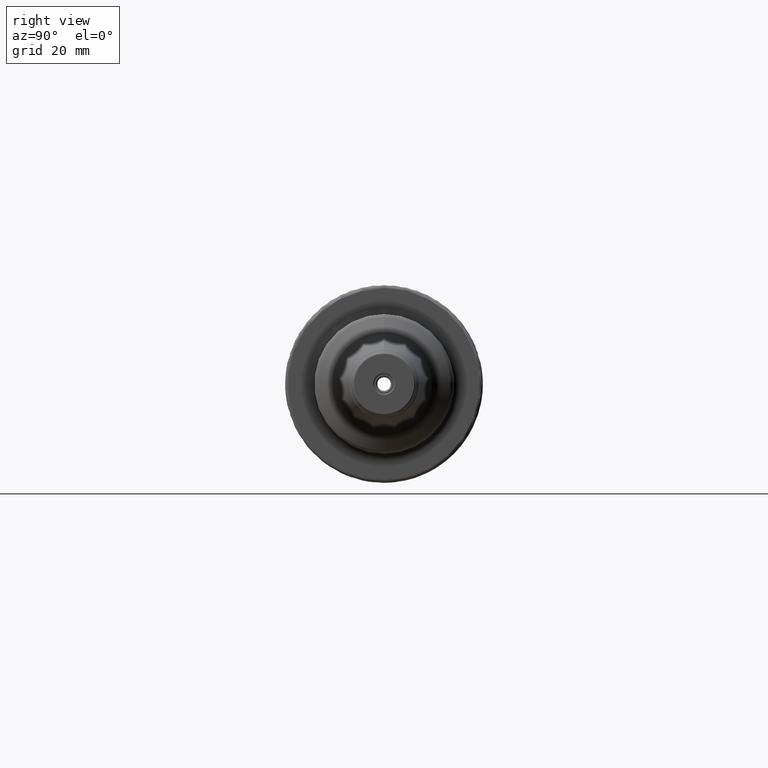
[diagram: clean part render]
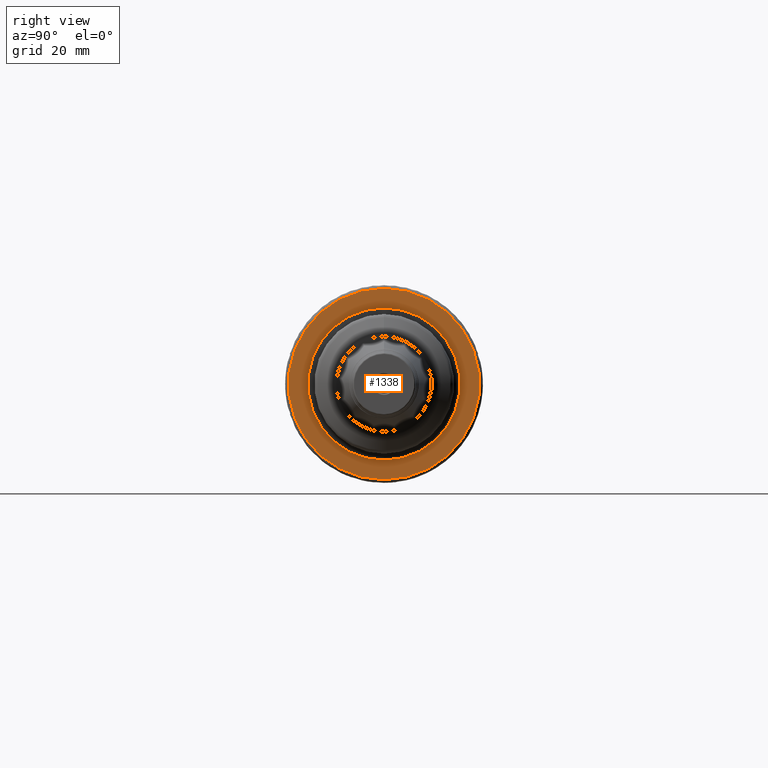
[diagram: same view with one face highlighted and labeled with its STEP entity id]
A machine part, right view. The second image highlights one B-rep face of the part: STEP entity #1338.
In plain terms, the highlighted planar face has unit normal (1, 0, 0).
Its self-contained STEP definition (entity closure, byte-faithful):
#51=FACE_BOUND('',#238,.T.);
#101=PLANE('',#1487);
#149=FACE_OUTER_BOUND('',#237,.T.);
#237=EDGE_LOOP('',(#980));
#238=EDGE_LOOP('',(#981));
#488=CIRCLE('',#1484,24.25);
#490=CIRCLE('',#1488,30.5);
#577=VERTEX_POINT('',#2151);
#579=VERTEX_POINT('',#2159);
#725=EDGE_CURVE('',#577,#577,#488,.T.);
#728=EDGE_CURVE('',#579,#579,#490,.T.);
#980=ORIENTED_EDGE('',*,*,#728,.T.);
#981=ORIENTED_EDGE('',*,*,#725,.F.);
#1338=ADVANCED_FACE('',(#149,#51),#101,.T.);
#1484=AXIS2_PLACEMENT_3D('',#2153,#1743,#1744);
#1487=AXIS2_PLACEMENT_3D('',#2158,#1750,#1751);
#1488=AXIS2_PLACEMENT_3D('',#2160,#1752,#1753);
#1743=DIRECTION('center_axis',(1.,0.,0.));
#1744=DIRECTION('ref_axis',(0.,-1.22464679914735E-16,1.));
#1750=DIRECTION('center_axis',(1.,0.,0.));
#1751=DIRECTION('ref_axis',(0.,0.,-1.));
#1752=DIRECTION('center_axis',(1.,0.,0.));
#1753=DIRECTION('ref_axis',(0.,0.,-1.));
#2151=CARTESIAN_POINT('',(27.,5.93953697586466E-15,-24.25));
#2153=CARTESIAN_POINT('Origin',(27.,0.,0.));
#2158=CARTESIAN_POINT('Origin',(27.,0.,0.));
#2159=CARTESIAN_POINT('',(27.,-3.73517273739943E-15,30.5));
#2160=CARTESIAN_POINT('Origin',(27.,0.,0.));